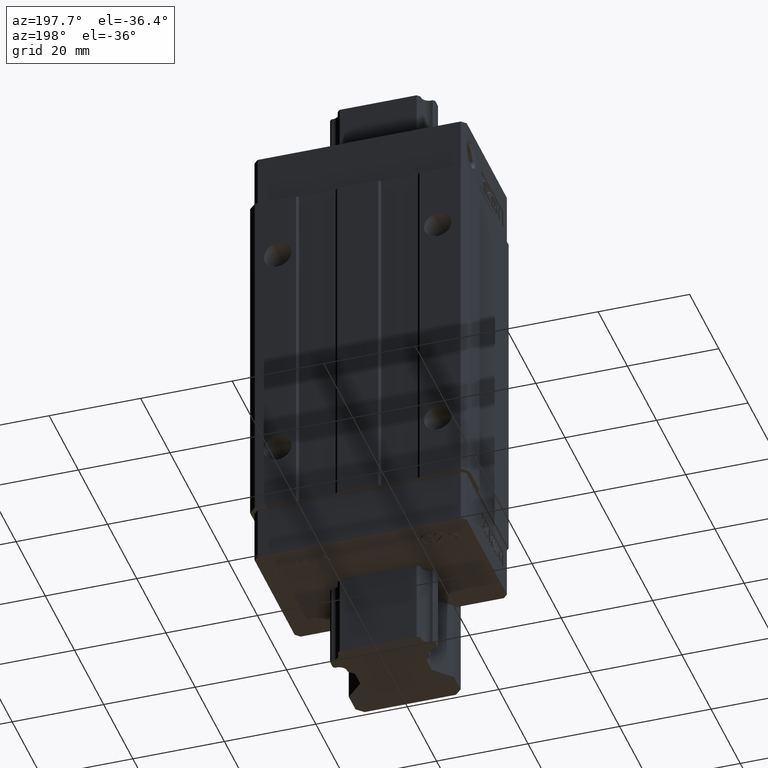
[diagram: clean part render]
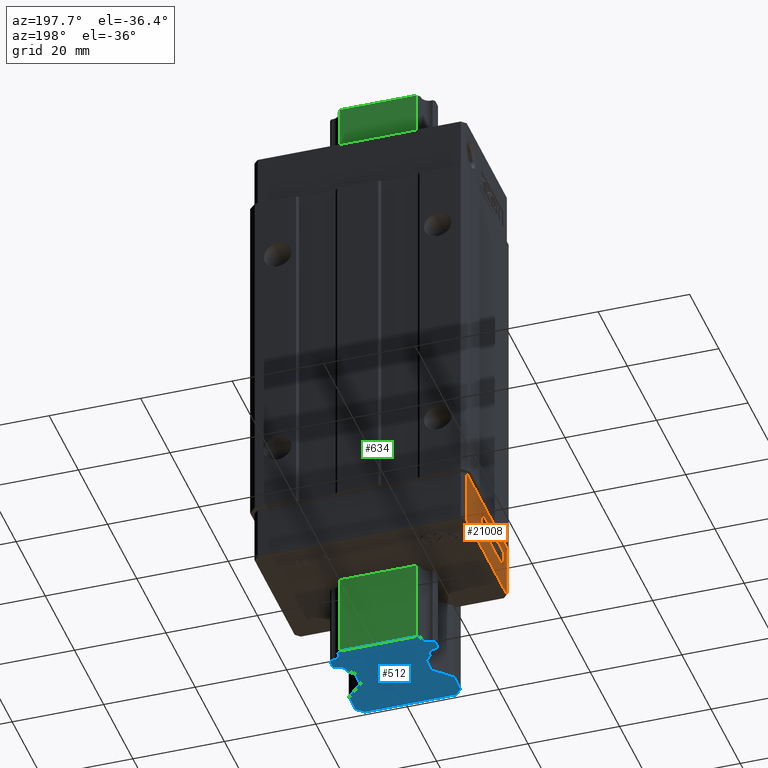
[diagram: same view with three faces highlighted in distinct colors, each labeled with its STEP entity id]
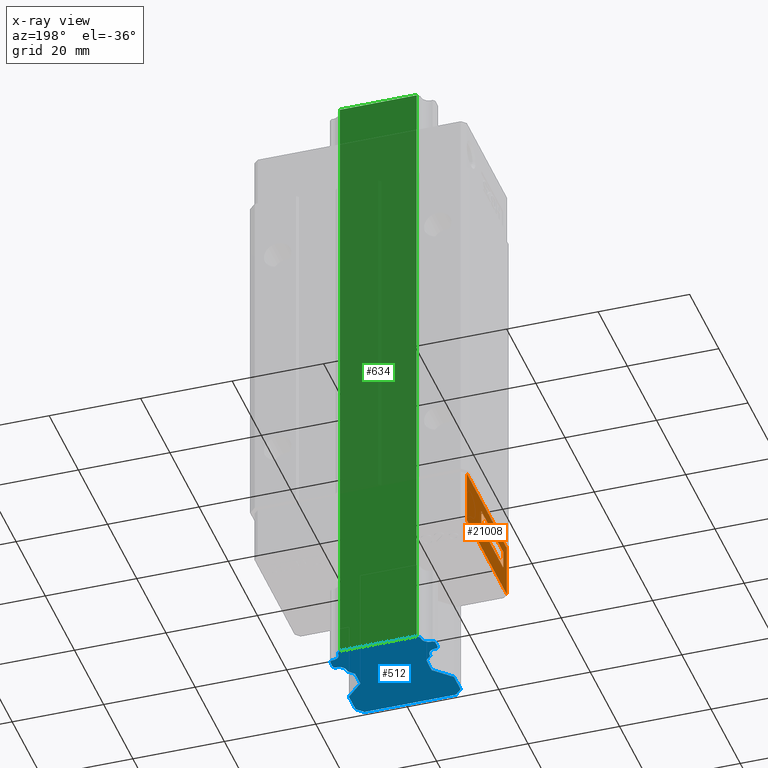
[diagram: x-ray of the same camera — body ghosted, the three highlighted faces saturated]
A machine part, auxiliary view with three faces highlighted in distinct colors.
The next image is the same camera in x-ray (body ghosted, the three faces saturated) — at least one of them is partly hidden behind the body in this view.
Their STEP definitions:

[orange] entity #21008 — the highlighted planar face has unit normal (-1, 0, 0).
#2130=DIRECTION('',(-1.929188122402E-12,-1.E0,0.E0));
#2131=VECTOR('',#2130,2.749999999973E1);
#2132=CARTESIAN_POINT('',(-2.320000000003E1,1.199999999981E1,-9.06E1));
#2133=LINE('',#2132,#2131);
#3049=DIRECTION('',(-4.620304146061E-12,3.110430436302E-11,1.E0));
#3050=VECTOR('',#3049,5.999999991194E0);
#3051=CARTESIAN_POINT('',(-2.320000000003E1,1.199999999981E1,-9.06E1));
#3052=LINE('',#3051,#3050);
#3053=CARTESIAN_POINT('',(-2.320000000010E1,9.000000000257E0,-8.46E1));
#3054=DIRECTION('',(-1.E0,7.143667475849E-12,0.E0));
#3055=DIRECTION('',(7.143322970228E-12,1.E0,-1.119815351566E-9));
#3056=AXIS2_PLACEMENT_3D('',#3053,#3054,#3055);
#3058=CARTESIAN_POINT('',(-2.320000000010E1,9.000000000257E0,-8.46E1));
#3059=DIRECTION('',(-1.E0,7.143667475849E-12,0.E0));
#3060=DIRECTION('',(-7.143322970228E-12,-1.E0,-6.677728000239E-10));
#3061=AXIS2_PLACEMENT_3D('',#3058,#3059,#3060);
#3063=DIRECTION('',(3.402907580350E-12,-3.627705538046E-11,1.E0));
#3064=VECTOR('',#3063,6.000000008806E0);
#3065=CARTESIAN_POINT('',(-2.320000000006E1,1.2E1,-8.460000000881E1));
#3066=LINE('',#3065,#3064);
#3067=DIRECTION('',(-1.722226401913E-12,-1.E0,0.E0));
#3068=VECTOR('',#3067,2.749999999969E1);
#3069=CARTESIAN_POINT('',(-2.320000000004E1,1.199999999978E1,-7.86E1));
#3070=LINE('',#3069,#3068);
#3071=DIRECTION('',(0.E0,1.E0,0.E0));
#3072=VECTOR('',#3071,1.500000000001E1);
#3073=CARTESIAN_POINT('',(-2.320000000010E1,-1.300001182554E1,
-8.134999999992E1));
#3074=LINE('',#3073,#3072);
#3075=DIRECTION('',(0.E0,0.E0,-1.E0));
#3076=VECTOR('',#3075,4.E0);
#3077=CARTESIAN_POINT('',(-2.320000000010E1,1.999988174465E0,
-8.134999999992E1));
#3078=LINE('',#3077,#3076);
#3079=DIRECTION('',(0.E0,-1.E0,0.E0));
#3080=VECTOR('',#3079,1.500000000001E1);
#3081=CARTESIAN_POINT('',(-2.320000000010E1,1.999988174465E0,
-8.534999999992E1));
#3082=LINE('',#3081,#3080);
#3083=DIRECTION('',(0.E0,0.E0,1.E0));
#3084=VECTOR('',#3083,4.E0);
#3085=CARTESIAN_POINT('',(-2.320000000010E1,-1.300001182554E1,
-8.534999999992E1));
#3086=LINE('',#3085,#3084);
#3087=DIRECTION('',(-1.344110008480E-13,1.819285463019E-13,1.E0));
#3088=VECTOR('',#3087,1.2E1);
#3089=CARTESIAN_POINT('',(-2.320000000008E1,-1.549999999992E1,-9.06E1));
#3090=LINE('',#3089,#3088);
#14697=CARTESIAN_POINT('',(-2.320000000009E1,-1.549999999992E1,-7.86E1));
#14698=VERTEX_POINT('',#14697);
#14699=CARTESIAN_POINT('',(-2.320000000004E1,1.199999999978E1,-7.86E1));
#14700=VERTEX_POINT('',#14699);
#15329=CARTESIAN_POINT('',(-2.320000000003E1,1.199999999981E1,-9.06E1));
#15330=VERTEX_POINT('',#15329);
#15331=CARTESIAN_POINT('',(-2.320000000008E1,-1.549999999992E1,-9.06E1));
#15332=VERTEX_POINT('',#15331);
#15873=CARTESIAN_POINT('',(-2.320000000006E1,1.2E1,-8.460000000881E1));
#15874=VERTEX_POINT('',#15873);
#15875=CARTESIAN_POINT('',(-2.320000000012E1,6.000000000279E0,
-8.460000000200E1));
#15876=VERTEX_POINT('',#15875);
#15877=CARTESIAN_POINT('',(-2.320000000010E1,-1.300001182554E1,
-8.134999999992E1));
#15878=CARTESIAN_POINT('',(-2.320000000010E1,1.999988174465E0,
-8.134999999992E1));
#15879=VERTEX_POINT('',#15877);
#15880=VERTEX_POINT('',#15878);
#15881=CARTESIAN_POINT('',(-2.320000000010E1,1.999988174465E0,
-8.534999999992E1));
#15882=VERTEX_POINT('',#15881);
#15883=CARTESIAN_POINT('',(-2.320000000010E1,-1.300001182554E1,
-8.534999999992E1));
#15884=VERTEX_POINT('',#15883);
#20981=CARTESIAN_POINT('',(-2.320000000010E1,-1.549999999990E1,-7.86E1));
#20982=DIRECTION('',(-1.E0,0.E0,0.E0));
#20983=DIRECTION('',(0.E0,0.E0,1.E0));
#20984=AXIS2_PLACEMENT_3D('',#20981,#20982,#20983);
#20985=PLANE('',#20984);
#20987=ORIENTED_EDGE('',*,*,#20986,.F.);
#20988=ORIENTED_EDGE('',*,*,#20055,.F.);
#20989=ORIENTED_EDGE('',*,*,#20971,.T.);
#20991=ORIENTED_EDGE('',*,*,#20990,.T.);
#20993=ORIENTED_EDGE('',*,*,#20992,.T.);
#20994=ORIENTED_EDGE('',*,*,#20976,.T.);
#20995=ORIENTED_EDGE('',*,*,#19330,.T.);
#20996=EDGE_LOOP('',(#20987,#20988,#20989,#20991,#20993,#20994,#20995));
#20997=FACE_OUTER_BOUND('',#20996,.F.);
#20999=ORIENTED_EDGE('',*,*,#20998,.T.);
#21001=ORIENTED_EDGE('',*,*,#21000,.T.);
#21003=ORIENTED_EDGE('',*,*,#21002,.T.);
#21005=ORIENTED_EDGE('',*,*,#21004,.T.);
#21006=EDGE_LOOP('',(#20999,#21001,#21003,#21005));
#21007=FACE_BOUND('',#21006,.F.);
#21008=ADVANCED_FACE('',(#20997,#21007),#20985,.T.);
#3057=CIRCLE('',#3056,2.999999999978E0);
#3062=CIRCLE('',#3061,2.999999999978E0);
#19330=EDGE_CURVE('',#14700,#14698,#3070,.T.);
#20055=EDGE_CURVE('',#15330,#15332,#2133,.T.);
#20971=EDGE_CURVE('',#15330,#15874,#3052,.T.);
#20976=EDGE_CURVE('',#15874,#14700,#3066,.T.);
#20986=EDGE_CURVE('',#15332,#14698,#3090,.T.);
#20990=EDGE_CURVE('',#15874,#15876,#3057,.T.);
#20992=EDGE_CURVE('',#15876,#15874,#3062,.T.);
#20998=EDGE_CURVE('',#15879,#15880,#3074,.T.);
#21000=EDGE_CURVE('',#15880,#15882,#3078,.T.);
#21002=EDGE_CURVE('',#15882,#15884,#3082,.T.);
#21004=EDGE_CURVE('',#15884,#15879,#3086,.T.);

[blue] entity #512 — the highlighted planar face has unit normal (0, 0, 1).
#1=CARTESIAN_POINT('',(1.076703113964E1,-7.062684906927E0,-1.09E2));
#2=DIRECTION('',(0.E0,0.E0,-1.E0));
#3=DIRECTION('',(-9.839691984791E-1,-1.783384883987E-1,0.E0));
#4=AXIS2_PLACEMENT_3D('',#1,#2,#3);
#6=CARTESIAN_POINT('',(1.076703113964E1,-7.062684906927E0,-1.09E2));
#7=DIRECTION('',(0.E0,0.E0,-1.E0));
#8=DIRECTION('',(-9.999999999999E-1,3.405675913980E-7,0.E0));
#9=AXIS2_PLACEMENT_3D('',#6,#7,#8);
#11=DIRECTION('',(7.071067811865E-1,7.071067811866E-1,0.E0));
#12=VECTOR('',#11,5.952084290354E-1);
#13=CARTESIAN_POINT('',(1.107912408361E1,-5.340738916390E0,-1.09E2));
#14=LINE('',#13,#12);
#15=DIRECTION('',(-7.071067811882E-1,7.071067811849E-1,0.E0));
#16=VECTOR('',#15,6.135064891609E-1);
#17=CARTESIAN_POINT('',(1.15E1,-3.091302E0,-1.09E2));
#18=LINE('',#17,#16);
#19=CARTESIAN_POINT('',(1.077223872935E1,-9.323510720792E-1,-1.09E2));
#20=DIRECTION('',(0.E0,0.E0,-1.E0));
#21=DIRECTION('',(1.679695267784E-1,-9.857921880771E-1,0.E0));
#22=AXIS2_PLACEMENT_3D('',#19,#20,#21);
#24=CARTESIAN_POINT('',(1.077223872935E1,-9.323510720792E-1,-1.09E2));
#25=DIRECTION('',(0.E0,0.E0,-1.E0));
#26=DIRECTION('',(-9.999999988507E-1,4.794433611512E-5,0.E0));
#27=AXIS2_PLACEMENT_3D('',#24,#25,#26);
#29=DIRECTION('',(-7.071066116500E-1,7.071069507231E-1,0.E0));
#30=VECTOR('',#29,9.028392267077E-1);
#31=CARTESIAN_POINT('',(9.047102486710E0,-6.384038925904E-1,-1.09E2));
#32=LINE('',#31,#30);
#33=DIRECTION('',(-7.071066116500E-1,-7.071069507231E-1,0.E0));
#34=VECTOR('',#33,9.028392267077E-1);
#35=CARTESIAN_POINT('',(-8.408698900248E0,0.E0,-1.09E2));
#36=LINE('',#35,#34);
#37=CARTESIAN_POINT('',(-1.077223872935E1,-9.323510720793E-1,-1.09E2));
#38=DIRECTION('',(0.E0,0.E0,-1.E0));
#39=DIRECTION('',(9.857921386515E-1,1.679698168508E-1,0.E0));
#40=AXIS2_PLACEMENT_3D('',#37,#38,#39);
#42=CARTESIAN_POINT('',(-1.077223872935E1,-9.323510720793E-1,-1.09E2));
#43=DIRECTION('',(0.E0,0.E0,-1.E0));
#44=DIRECTION('',(9.999999988506E-1,-4.794552947348E-5,0.E0));
#45=AXIS2_PLACEMENT_3D('',#42,#43,#44);
#47=DIRECTION('',(-7.071067811875E-1,-7.071067811856E-1,0.E0));
#48=VECTOR('',#47,6.135064891627E-1);
#49=CARTESIAN_POINT('',(-1.106618540121E1,-2.657487401214E0,-1.09E2));
#50=LINE('',#49,#48);
#51=DIRECTION('',(7.071067811863E-1,-7.071067811868E-1,0.E0));
#52=VECTOR('',#51,5.952084290354E-1);
#53=CARTESIAN_POINT('',(-1.15E1,-4.919863E0,-1.09E2));
#54=LINE('',#53,#52);
#55=CARTESIAN_POINT('',(-1.076703113964E1,-7.062684906927E0,-1.09E2));
#56=DIRECTION('',(0.E0,0.E0,-1.E0));
#57=DIRECTION('',(-1.783388251255E-1,9.839691374494E-1,0.E0));
#58=AXIS2_PLACEMENT_3D('',#55,#56,#57);
#60=CARTESIAN_POINT('',(-1.076703113964E1,-7.062684906927E0,-1.09E2));
#61=DIRECTION('',(0.E0,0.E0,-1.E0));
#62=DIRECTION('',(9.999999927986E-1,1.200112725773E-4,0.E0));
#63=AXIS2_PLACEMENT_3D('',#60,#61,#62);
#65=DIRECTION('',(7.071068958282E-1,-7.071066665449E-1,0.E0));
#66=VECTOR('',#65,1.760815867654E0);
#67=CARTESIAN_POINT('',(-9.045085042302E0,-7.374777261625E0,-1.09E2));
#68=LINE('',#67,#66);
#69=DIRECTION('',(-7.071068289636E-1,-7.071067334095E-1,0.E0));
#70=VECTOR('',#69,5.232589827228E0);
#71=CARTESIAN_POINT('',(-7.8E0,-1.220135099989E1,-1.09E2));
#72=LINE('',#71,#70);
#73=DIRECTION('',(7.071067811865E-1,-7.071067811865E-1,0.E0));
#74=VECTOR('',#73,2.121320343560E0);
#75=CARTESIAN_POINT('',(-1.15E1,-2.05E1,-1.09E2));
#76=LINE('',#75,#74);
#77=DIRECTION('',(7.071067811865E-1,7.071067811865E-1,0.E0));
#78=VECTOR('',#77,2.121320343560E0);
#79=CARTESIAN_POINT('',(1.E1,-2.2E1,-1.09E2));
#80=LINE('',#79,#78);
#81=DIRECTION('',(-7.071068289637E-1,7.071067334094E-1,0.E0));
#82=VECTOR('',#81,5.232589827227E0);
#83=CARTESIAN_POINT('',(1.15E1,-1.590135049989E1,-1.09E2));
#84=LINE('',#83,#82);
#85=DIRECTION('',(7.071068958281E-1,7.071066665450E-1,0.E0));
#86=VECTOR('',#85,1.760815867654E0);
#87=CARTESIAN_POINT('',(7.8E0,-8.619861900201E0,-1.09E2));
#88=LINE('',#87,#86);
#229=DIRECTION('',(1.E0,0.E0,0.E0));
#230=VECTOR('',#229,1.681739780050E1);
#231=CARTESIAN_POINT('',(-8.408698900248E0,0.E0,-1.09E2));
#232=LINE('',#231,#230);
#249=DIRECTION('',(1.991473908049E-13,1.E0,0.E0));
#250=VECTOR('',#249,1.828560999997E0);
#251=CARTESIAN_POINT('',(-1.15E1,-4.919863E0,-1.09E2));
#252=LINE('',#251,#250);
#269=DIRECTION('',(-8.530903427947E-14,1.E0,0.E0));
#270=VECTOR('',#269,3.581489099688E0);
#271=CARTESIAN_POINT('',(-7.8E0,-1.220135099989E1,-1.09E2));
#272=LINE('',#271,#270);
#281=DIRECTION('',(3.109537388496E-13,1.E0,0.E0));
#282=VECTOR('',#281,4.598649500107E0);
#283=CARTESIAN_POINT('',(-1.15E1,-2.05E1,-1.09E2));
#284=LINE('',#283,#282);
#293=DIRECTION('',(-1.E0,0.E0,0.E0));
#294=VECTOR('',#293,2.E1);
#295=CARTESIAN_POINT('',(1.E1,-2.2E1,-1.09E2));
#296=LINE('',#295,#294);
#305=DIRECTION('',(0.E0,-1.E0,0.E0));
#306=VECTOR('',#305,4.598649500110E0);
#307=CARTESIAN_POINT('',(1.15E1,-1.590135049989E1,-1.09E2));
#308=LINE('',#307,#306);
#317=DIRECTION('',(4.285291024271E-13,-1.E0,0.E0));
#318=VECTOR('',#317,3.581489099688E0);
#319=CARTESIAN_POINT('',(7.8E0,-8.619861900201E0,-1.09E2));
#320=LINE('',#319,#318);
#325=DIRECTION('',(2.914352060555E-14,-1.E0,0.E0));
#326=VECTOR('',#325,1.828561E0);
#327=CARTESIAN_POINT('',(1.15E1,-3.091302E0,-1.09E2));
#328=LINE('',#327,#326);
#337=CARTESIAN_POINT('',(9.045085042302E0,-7.374777261625E0,-1.09E2));
#338=CARTESIAN_POINT('',(9.017031139640E0,-7.062684310934E0,-1.09E2));
#339=VERTEX_POINT('',#337);
#340=VERTEX_POINT('',#338);
#341=CARTESIAN_POINT('',(1.107912408361E1,-5.340738916391E0,-1.09E2));
#342=VERTEX_POINT('',#341);
#343=CARTESIAN_POINT('',(1.15E1,-4.919863E0,-1.09E2));
#344=VERTEX_POINT('',#343);
#345=CARTESIAN_POINT('',(1.15E1,-3.091302E0,-1.09E2));
#346=VERTEX_POINT('',#345);
#347=CARTESIAN_POINT('',(1.106618540121E1,-2.657487401213E0,-1.09E2));
#348=VERTEX_POINT('',#347);
#349=CARTESIAN_POINT('',(9.022238731361E0,-9.322671694910E-1,-1.09E2));
#350=VERTEX_POINT('',#349);
#351=CARTESIAN_POINT('',(9.047102486710E0,-6.384038925904E-1,-1.09E2));
#352=VERTEX_POINT('',#351);
#353=CARTESIAN_POINT('',(8.408698900248E0,0.E0,-1.09E2));
#354=VERTEX_POINT('',#353);
#355=CARTESIAN_POINT('',(-8.408698900248E0,0.E0,-1.09E2));
#356=VERTEX_POINT('',#355);
#357=CARTESIAN_POINT('',(-9.047102486710E0,-6.384038925905E-1,-1.09E2));
#358=VERTEX_POINT('',#357);
#359=CARTESIAN_POINT('',(-9.022238731361E0,-9.324349767559E-1,-1.09E2));
#360=VERTEX_POINT('',#359);
#361=CARTESIAN_POINT('',(-1.106618540121E1,-2.657487401215E0,-1.09E2));
#362=VERTEX_POINT('',#361);
#363=CARTESIAN_POINT('',(-1.15E1,-3.091302000003E0,-1.09E2));
#364=VERTEX_POINT('',#363);
#365=CARTESIAN_POINT('',(-1.15E1,-4.919863E0,-1.09E2));
#366=VERTEX_POINT('',#365);
#367=CARTESIAN_POINT('',(-1.107912408361E1,-5.340738916390E0,-1.09E2));
#368=VERTEX_POINT('',#367);
#369=CARTESIAN_POINT('',(-9.017031152242E0,-7.062474887200E0,-1.09E2));
#370=VERTEX_POINT('',#369);
#371=CARTESIAN_POINT('',(-9.045085042302E0,-7.374777261625E0,-1.09E2));
#372=VERTEX_POINT('',#371);
#373=CARTESIAN_POINT('',(-7.8E0,-8.619861900201E0,-1.09E2));
#374=VERTEX_POINT('',#373);
#375=CARTESIAN_POINT('',(-7.8E0,-1.220135099989E1,-1.09E2));
#376=VERTEX_POINT('',#375);
#377=CARTESIAN_POINT('',(-1.15E1,-1.590135049989E1,-1.09E2));
#378=VERTEX_POINT('',#377);
#379=CARTESIAN_POINT('',(-1.15E1,-2.05E1,-1.09E2));
#380=VERTEX_POINT('',#379);
#381=CARTESIAN_POINT('',(-1.E1,-2.2E1,-1.09E2));
#382=VERTEX_POINT('',#381);
#383=CARTESIAN_POINT('',(1.E1,-2.2E1,-1.09E2));
#384=VERTEX_POINT('',#383);
#385=CARTESIAN_POINT('',(1.15E1,-2.05E1,-1.09E2));
#386=VERTEX_POINT('',#385);
#387=CARTESIAN_POINT('',(1.15E1,-1.590135049989E1,-1.09E2));
#388=VERTEX_POINT('',#387);
#389=CARTESIAN_POINT('',(7.800000000002E0,-1.220135099989E1,-1.09E2));
#390=VERTEX_POINT('',#389);
#391=CARTESIAN_POINT('',(7.8E0,-8.619861900201E0,-1.09E2));
#392=VERTEX_POINT('',#391);
#449=CARTESIAN_POINT('',(5.E0,1.75E1,-1.09E2));
#450=DIRECTION('',(0.E0,0.E0,1.E0));
#451=DIRECTION('',(1.E0,0.E0,0.E0));
#452=AXIS2_PLACEMENT_3D('',#449,#450,#451);
#453=PLANE('',#452);
#455=ORIENTED_EDGE('',*,*,#454,.T.);
#457=ORIENTED_EDGE('',*,*,#456,.T.);
#459=ORIENTED_EDGE('',*,*,#458,.T.);
#461=ORIENTED_EDGE('',*,*,#460,.F.);
#463=ORIENTED_EDGE('',*,*,#462,.T.);
#465=ORIENTED_EDGE('',*,*,#464,.T.);
#467=ORIENTED_EDGE('',*,*,#466,.T.);
#469=ORIENTED_EDGE('',*,*,#468,.T.);
#471=ORIENTED_EDGE('',*,*,#470,.F.);
#473=ORIENTED_EDGE('',*,*,#472,.T.);
#475=ORIENTED_EDGE('',*,*,#474,.T.);
#477=ORIENTED_EDGE('',*,*,#476,.T.);
#479=ORIENTED_EDGE('',*,*,#478,.T.);
#481=ORIENTED_EDGE('',*,*,#480,.F.);
#483=ORIENTED_EDGE('',*,*,#482,.T.);
#485=ORIENTED_EDGE('',*,*,#484,.T.);
#487=ORIENTED_EDGE('',*,*,#486,.T.);
#489=ORIENTED_EDGE('',*,*,#488,.T.);
#491=ORIENTED_EDGE('',*,*,#490,.F.);
#493=ORIENTED_EDGE('',*,*,#492,.T.);
#495=ORIENTED_EDGE('',*,*,#494,.F.);
#497=ORIENTED_EDGE('',*,*,#496,.T.);
#499=ORIENTED_EDGE('',*,*,#498,.F.);
#501=ORIENTED_EDGE('',*,*,#500,.T.);
#503=ORIENTED_EDGE('',*,*,#502,.F.);
#505=ORIENTED_EDGE('',*,*,#504,.T.);
#507=ORIENTED_EDGE('',*,*,#506,.F.);
#509=ORIENTED_EDGE('',*,*,#508,.T.);
#510=EDGE_LOOP('',(#455,#457,#459,#461,#463,#465,#467,#469,#471,#473,#475,#477,
#479,#481,#483,#485,#487,#489,#491,#493,#495,#497,#499,#501,#503,#505,#507,
#509));
#511=FACE_OUTER_BOUND('',#510,.F.);
#512=ADVANCED_FACE('',(#511),#453,.F.);
#5=CIRCLE('',#4,1.75E0);
#10=CIRCLE('',#9,1.75E0);
#23=CIRCLE('',#22,1.75E0);
#28=CIRCLE('',#27,1.75E0);
#41=CIRCLE('',#40,1.75E0);
#46=CIRCLE('',#45,1.75E0);
#59=CIRCLE('',#58,1.75E0);
#64=CIRCLE('',#63,1.75E0);
#454=EDGE_CURVE('',#339,#340,#5,.T.);
#456=EDGE_CURVE('',#340,#342,#10,.T.);
#458=EDGE_CURVE('',#342,#344,#14,.T.);
#460=EDGE_CURVE('',#346,#344,#328,.T.);
#462=EDGE_CURVE('',#346,#348,#18,.T.);
#464=EDGE_CURVE('',#348,#350,#23,.T.);
#466=EDGE_CURVE('',#350,#352,#28,.T.);
#468=EDGE_CURVE('',#352,#354,#32,.T.);
#470=EDGE_CURVE('',#356,#354,#232,.T.);
#472=EDGE_CURVE('',#356,#358,#36,.T.);
#474=EDGE_CURVE('',#358,#360,#41,.T.);
#476=EDGE_CURVE('',#360,#362,#46,.T.);
#478=EDGE_CURVE('',#362,#364,#50,.T.);
#480=EDGE_CURVE('',#366,#364,#252,.T.);
#482=EDGE_CURVE('',#366,#368,#54,.T.);
#484=EDGE_CURVE('',#368,#370,#59,.T.);
#486=EDGE_CURVE('',#370,#372,#64,.T.);
#488=EDGE_CURVE('',#372,#374,#68,.T.);
#490=EDGE_CURVE('',#376,#374,#272,.T.);
#492=EDGE_CURVE('',#376,#378,#72,.T.);
#494=EDGE_CURVE('',#380,#378,#284,.T.);
#496=EDGE_CURVE('',#380,#382,#76,.T.);
#498=EDGE_CURVE('',#384,#382,#296,.T.);
#500=EDGE_CURVE('',#384,#386,#80,.T.);
#502=EDGE_CURVE('',#388,#386,#308,.T.);
#504=EDGE_CURVE('',#388,#390,#84,.T.);
#506=EDGE_CURVE('',#392,#390,#320,.T.);
#508=EDGE_CURVE('',#392,#339,#88,.T.);

[green] entity #634 — the highlighted planar face has unit normal (0, 1, 0).
#209=DIRECTION('',(1.E0,0.E0,0.E0));
#210=VECTOR('',#209,1.681739780050E1);
#211=CARTESIAN_POINT('',(-8.408698900248E0,0.E0,3.1E1));
#212=LINE('',#211,#210);
#225=DIRECTION('',(0.E0,0.E0,-1.E0));
#226=VECTOR('',#225,1.4E2);
#227=CARTESIAN_POINT('',(8.408698900248E0,0.E0,3.1E1));
#228=LINE('',#227,#226);
#229=DIRECTION('',(1.E0,0.E0,0.E0));
#230=VECTOR('',#229,1.681739780050E1);
#231=CARTESIAN_POINT('',(-8.408698900248E0,0.E0,-1.09E2));
#232=LINE('',#231,#230);
#233=DIRECTION('',(0.E0,0.E0,-1.E0));
#234=VECTOR('',#233,1.4E2);
#235=CARTESIAN_POINT('',(-8.408698900248E0,0.E0,3.1E1));
#236=LINE('',#235,#234);
#353=CARTESIAN_POINT('',(8.408698900248E0,0.E0,-1.09E2));
#354=VERTEX_POINT('',#353);
#355=CARTESIAN_POINT('',(-8.408698900248E0,0.E0,-1.09E2));
#356=VERTEX_POINT('',#355);
#445=CARTESIAN_POINT('',(-8.408698900248E0,0.E0,3.1E1));
#446=VERTEX_POINT('',#445);
#447=CARTESIAN_POINT('',(8.408698900248E0,0.E0,3.1E1));
#448=VERTEX_POINT('',#447);
#622=CARTESIAN_POINT('',(8.408698900248E0,0.E0,-1.09E2));
#623=DIRECTION('',(0.E0,1.E0,0.E0));
#624=DIRECTION('',(-1.E0,0.E0,0.E0));
#625=AXIS2_PLACEMENT_3D('',#622,#623,#624);
#626=PLANE('',#625);
#627=ORIENTED_EDGE('',*,*,#470,.T.);
#628=ORIENTED_EDGE('',*,*,#616,.F.);
#629=ORIENTED_EDGE('',*,*,#586,.F.);
#631=ORIENTED_EDGE('',*,*,#630,.T.);
#632=EDGE_LOOP('',(#627,#628,#629,#631));
#633=FACE_OUTER_BOUND('',#632,.F.);
#634=ADVANCED_FACE('',(#633),#626,.T.);
#470=EDGE_CURVE('',#356,#354,#232,.T.);
#586=EDGE_CURVE('',#446,#448,#212,.T.);
#616=EDGE_CURVE('',#448,#354,#228,.T.);
#630=EDGE_CURVE('',#446,#356,#236,.T.);